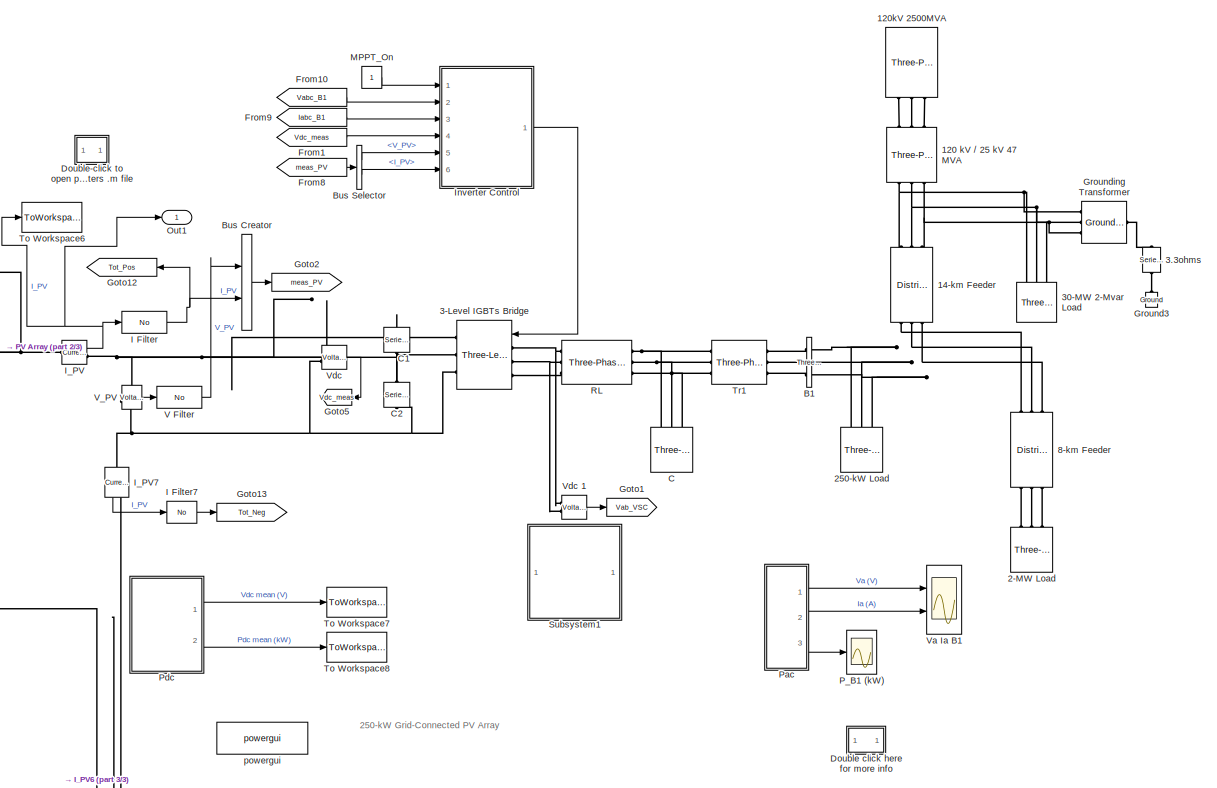
[diagram: root canvas - part 1/3, top right region]
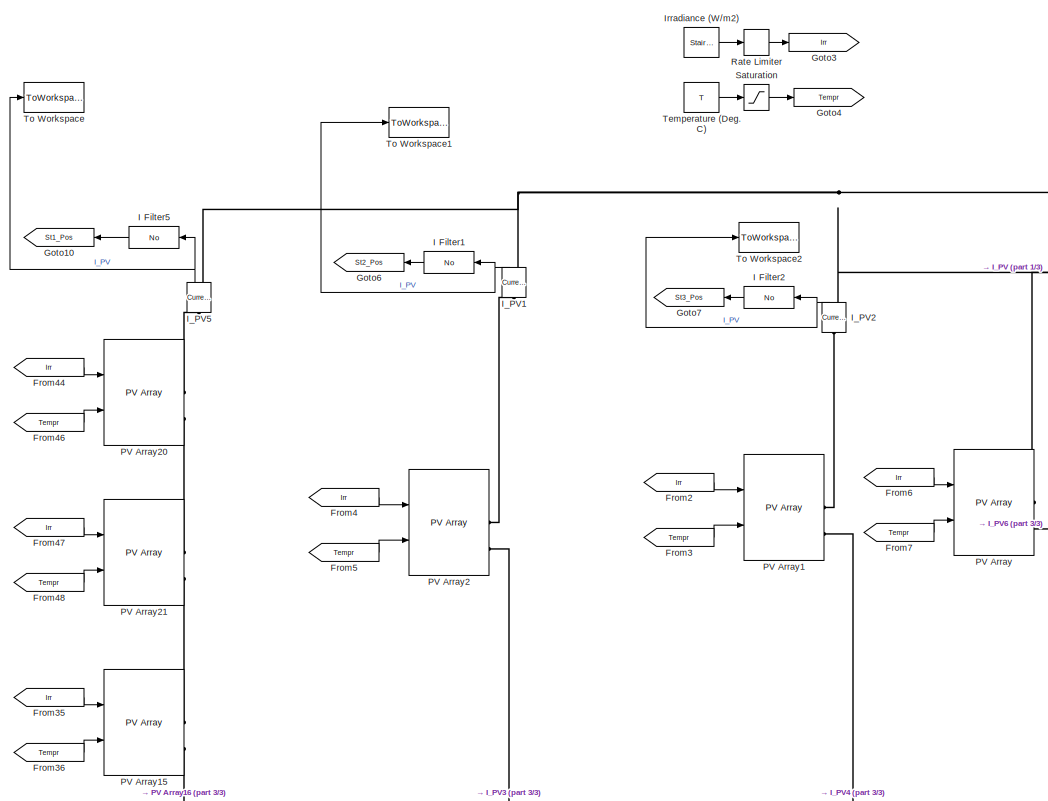
[diagram: root canvas - part 2/3, top left region]
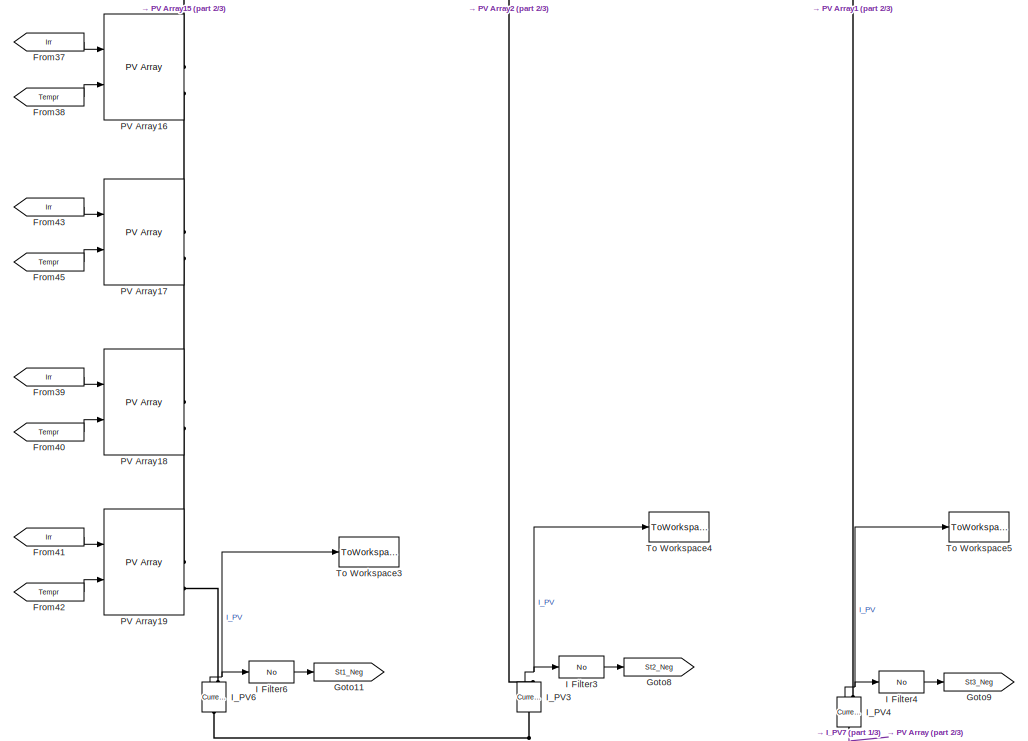
[diagram: root canvas - part 3/3, bottom left region]
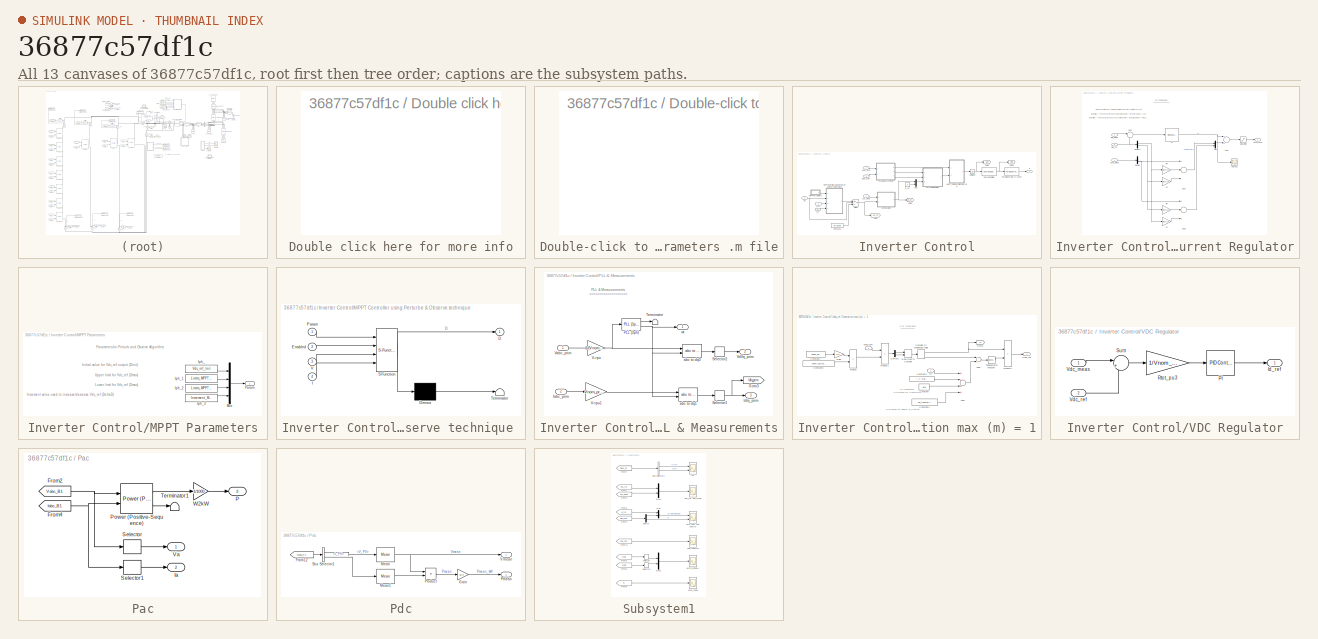
[diagram: thumbnail index - all 13 canvases of the model, root first then tree order]
MODEL slx_36877c57df1c
KIND model
CONFIG AbsTol = auto
CONFIG EnableMultiTasking = off
CONFIG FixedStep = auto
CONFIG InitFcn = power_PVarray_250kW_param;
CONFIG MaxStep = auto
CONFIG MinStep = auto
CONFIG PreLoadFcn = power_PVarray_250kW_param;
CONFIG RelTol = 1e-3
CONFIG SampleTimeConstraint = Unconstrained
CONFIG Solver = FixedStepDiscrete
CONFIG SolverName = FixedStepDiscrete
CONFIG StartTime = 0.0
CONFIG StopTime = tfinal
BLOCK [Reference] 120 kV // 25 kV 47 MVA  REF=powerlib/Elements/Three-Phase
Transformer
(Two Windings)
  AttributesFormatString = \n
  Ports = [0, 0, 0, 0, 0, 3, 3]
  SourceBlock = powerlib/Elements/Three-Phase\nTransformer\n(Two Windings)
  SourceProductBaseCode = PS
  SourceProductName = Simscape Electrical
  SourceType = Three-Phase Transformer (Two Windings)
BLOCK [Reference] 120kV 2500MVA  REF=powerlib/Electrical
Sources/Three-Phase Source
  Ports = [0, 0, 0, 0, 0, 0, 3]
  SourceBlock = powerlib/Electrical\nSources/Three-Phase Source
  SourceProductBaseCode = PS
  SourceProductName = Simscape Electrical
  SourceType = Three-Phase Source
BLOCK [Reference] 14-km Feeder  REF=powerlib/Elements/Distributed Parameters Line
  Ports = [0, 0, 0, 0, 0, 3, 3]
  SourceBlock = powerlib/Elements/Distributed Parameters Line
  SourceProductBaseCode = PS
  SourceProductName = Simscape Electrical
  SourceType = Distributed Parameters Line
BLOCK [Reference] 2-MW Load  REF=powerlib/Elements/Three-Phase
Parallel RLC Load
  AttributesFormatString = \n
  Ports = [0, 0, 0, 0, 0, 3]
  SourceBlock = powerlib/Elements/Three-Phase\nParallel RLC Load
  SourceProductBaseCode = PS
  SourceProductName = Simscape Electrical
  SourceType = Three-Phase Parallel RLC Load
BLOCK [Reference] 250-kW Load  REF=powerlib/Elements/Three-Phase
Parallel RLC Load
  AttributesFormatString = \n
  Ports = [0, 0, 0, 0, 0, 3]
  SourceBlock = powerlib/Elements/Three-Phase\nParallel RLC Load
  SourceProductBaseCode = PS
  SourceProductName = Simscape Electrical
  SourceType = Three-Phase Parallel RLC Load
BLOCK [Reference] 3-Level IGBTs Bridge  REF=powerlib/Power
Electronics/Three-Level Bridge
  AttributesFormatString = \n
  Ports = [1, 0, 0, 0, 0, 3, 3]
  SourceBlock = powerlib/Power\nElectronics/Three-Level Bridge
  SourceProductBaseCode = PS
  SourceProductName = Simscape Electrical
  SourceType = Three-Level Bridge
BLOCK [Reference] 3.3ohms   REF=powerlib/Elements/Series RLC Branch
  Ports = [0, 0, 0, 0, 0, 1, 1]
  SourceBlock = powerlib/Elements/Series RLC Branch
  SourceProductBaseCode = PS
  SourceProductName = Simscape Electrical
  SourceType = Series RLC Branch
BLOCK [Reference] 30-MW 2-Mvar Load  REF=powerlib/Elements/Three-Phase
Parallel RLC Load
  AttributesFormatString = \n
  Ports = [0, 0, 0, 0, 0, 3]
  SourceBlock = powerlib/Elements/Three-Phase\nParallel RLC Load
  SourceProductBaseCode = PS
  SourceProductName = Simscape Electrical
  SourceType = Three-Phase Parallel RLC Load
BLOCK [Reference] 8-km Feeder  REF=powerlib/Elements/Distributed Parameters Line
  Ports = [0, 0, 0, 0, 0, 3, 3]
  SourceBlock = powerlib/Elements/Distributed Parameters Line
  SourceProductBaseCode = PS
  SourceProductName = Simscape Electrical
  SourceType = Distributed Parameters Line
BLOCK [Reference] B1  REF=powerlib/Measurements/Three-Phase
V-I Measurement
  Ports = [0, 0, 0, 0, 0, 3, 3]
  SourceBlock = powerlib/Measurements/Three-Phase\nV-I Measurement
  SourceProductBaseCode = PS
  SourceProductName = Simscape Electrical
  SourceType = Three-Phase VI Measurement
BLOCK [BusCreator] Bus Creator
  DisplayOption = bar
  InheritFromInputs = on
  Inputs = 2
  Ports = [2, 1]
BLOCK [BusSelector] Bus Selector
  OutputAsBus = off
  OutputSignals = V_PV,I_PV
  Ports = [1, 2]
BLOCK [Reference] C  REF=powerlib/Elements/Three-Phase
Series RLC Load
  AttributesFormatString = \n
  Ports = [0, 0, 0, 0, 0, 3]
  SourceBlock = powerlib/Elements/Three-Phase\nSeries RLC Load
  SourceProductBaseCode = PS
  SourceProductName = Simscape Electrical
  SourceType = Three-Phase Series RLC Load
BLOCK [Reference] C1  REF=powerlib/Elements/Series RLC Branch
  AttributesFormatString = \n
  Ports = [0, 0, 0, 0, 0, 1, 1]
  SourceBlock = powerlib/Elements/Series RLC Branch
  SourceProductBaseCode = PS
  SourceProductName = Simscape Electrical
  SourceType = Series RLC Branch
BLOCK [Reference] C2  REF=powerlib/Elements/Series RLC Branch
  AttributesFormatString = \n
  Ports = [0, 0, 0, 0, 0, 1, 1]
  SourceBlock = powerlib/Elements/Series RLC Branch
  SourceProductBaseCode = PS
  SourceProductName = Simscape Electrical
  SourceType = Series RLC Branch
BLOCK [SubSystem] Double click here for more info
  OpenFcn = showdemo(bdroot(gcb))
  Ports = []
  RequestExecContextInheritance = off
BLOCK [SubSystem] Double-click to open parameters .m file
  OpenFcn = open('power_PVarray_250kW_param.m')
  Ports = []
  RequestExecContextInheritance = off
BLOCK [From] From1
  CloseFcn = tagdialog Close
  GotoTag = Vdc_meas
  TagVisibility = global
BLOCK [From] From10
  CloseFcn = tagdialog Close
  GotoTag = Vabc_B1
  TagVisibility = global
BLOCK [From] From2
  CloseFcn = tagdialog Close
  GotoTag = Irr
  TagVisibility = global
BLOCK [From] From3
  CloseFcn = tagdialog Close
  GotoTag = Tempr
  TagVisibility = global
BLOCK [From] From35
  CloseFcn = tagdialog Close
  GotoTag = Irr
  TagVisibility = global
BLOCK [From] From36
  CloseFcn = tagdialog Close
  GotoTag = Tempr
  TagVisibility = global
BLOCK [From] From37
  CloseFcn = tagdialog Close
  GotoTag = Irr
  TagVisibility = global
BLOCK [From] From38
  CloseFcn = tagdialog Close
  GotoTag = Tempr
  TagVisibility = global
BLOCK [From] From39
  CloseFcn = tagdialog Close
  GotoTag = Irr
  TagVisibility = global
BLOCK [From] From4
  CloseFcn = tagdialog Close
  GotoTag = Irr
  TagVisibility = global
BLOCK [From] From40
  CloseFcn = tagdialog Close
  GotoTag = Tempr
  TagVisibility = global
BLOCK [From] From41
  CloseFcn = tagdialog Close
  GotoTag = Irr
  TagVisibility = global
BLOCK [From] From42
  CloseFcn = tagdialog Close
  GotoTag = Tempr
  TagVisibility = global
BLOCK [From] From43
  CloseFcn = tagdialog Close
  GotoTag = Irr
  TagVisibility = global
BLOCK [From] From44
  CloseFcn = tagdialog Close
  GotoTag = Irr
  TagVisibility = global
BLOCK [From] From45
  CloseFcn = tagdialog Close
  GotoTag = Tempr
  TagVisibility = global
BLOCK [From] From46
  CloseFcn = tagdialog Close
  GotoTag = Tempr
  TagVisibility = global
BLOCK [From] From47
  CloseFcn = tagdialog Close
  GotoTag = Irr
  TagVisibility = global
BLOCK [From] From48
  CloseFcn = tagdialog Close
  GotoTag = Tempr
  TagVisibility = global
BLOCK [From] From5
  CloseFcn = tagdialog Close
  GotoTag = Tempr
  TagVisibility = global
BLOCK [From] From6
  CloseFcn = tagdialog Close
  GotoTag = Irr
  TagVisibility = global
BLOCK [From] From7
  CloseFcn = tagdialog Close
  GotoTag = Tempr
  TagVisibility = global
BLOCK [From] From8
  CloseFcn = tagdialog Close
  GotoTag = meas_PV
  TagVisibility = global
BLOCK [From] From9
  CloseFcn = tagdialog Close
  GotoTag = Iabc_B1
  TagVisibility = global
BLOCK [Goto] Goto1
  GotoTag = Vab_VSC
  TagVisibility = global
BLOCK [Goto] Goto10
  GotoTag = St1_Pos
  TagVisibility = global
BLOCK [Goto] Goto11
  GotoTag = St1_Neg
  TagVisibility = global
BLOCK [Goto] Goto12
  GotoTag = Tot_Pos
  TagVisibility = global
BLOCK [Goto] Goto13
  GotoTag = Tot_Neg
  TagVisibility = global
BLOCK [Goto] Goto2
  GotoTag = meas_PV
  TagVisibility = global
BLOCK [Goto] Goto3
  GotoTag = Irr
  IconDisplay = Signal name
  TagVisibility = global
BLOCK [Goto] Goto4
  GotoTag = Tempr
  IconDisplay = Signal name
  TagVisibility = global
BLOCK [Goto] Goto5
  GotoTag = Vdc_meas
  TagVisibility = global
BLOCK [Goto] Goto6
  GotoTag = St2_Pos
  TagVisibility = global
BLOCK [Goto] Goto7
  GotoTag = St3_Pos
  TagVisibility = global
BLOCK [Goto] Goto8
  GotoTag = St2_Neg
  TagVisibility = global
BLOCK [Goto] Goto9
  GotoTag = St3_Neg
  TagVisibility = global
BLOCK [Reference] Ground3  REF=powerlib/Elements/Ground
  AttributesFormatString = \n
  Ports = [0, 0, 0, 0, 0, 1]
  SourceBlock = powerlib/Elements/Ground
  SourceProductBaseCode = PS
  SourceProductName = Simscape Electrical
  SourceType = Ground
BLOCK [Reference] Grounding Transformer   REF=powerlib/Elements/Grounding
Transformer 
  Ports = [0, 0, 0, 0, 0, 3, 1]
  SourceBlock = powerlib/Elements/Grounding\nTransformer
  SourceProductBaseCode = PS
  SourceProductName = Simscape Electrical
  SourceType = Grounding Transformer
BLOCK [Reference] I Filter  REF=spsPVarrayModel/No
  Ports = [1, 1]
  SourceBlock = spsPVarrayModel/No
  SourceProductBaseCode = PS
  SourceProductName = Simscape Electrical
  SourceType = SubSystem
BLOCK [Reference] I Filter1  REF=spsPVarrayModel/No
  Ports = [1, 1]
  SourceBlock = spsPVarrayModel/No
  SourceProductBaseCode = PS
  SourceProductName = Simscape Electrical
  SourceType = SubSystem
BLOCK [Reference] I Filter2  REF=spsPVarrayModel/No
  Ports = [1, 1]
  SourceBlock = spsPVarrayModel/No
  SourceProductBaseCode = PS
  SourceProductName = Simscape Electrical
  SourceType = SubSystem
BLOCK [Reference] I Filter3  REF=spsPVarrayModel/No
  Ports = [1, 1]
  SourceBlock = spsPVarrayModel/No
  SourceProductBaseCode = PS
  SourceProductName = Simscape Electrical
  SourceType = SubSystem
BLOCK [Reference] I Filter4  REF=spsPVarrayModel/No
  Ports = [1, 1]
  SourceBlock = spsPVarrayModel/No
  SourceProductBaseCode = PS
  SourceProductName = Simscape Electrical
  SourceType = SubSystem
BLOCK [Reference] I Filter5  REF=spsPVarrayModel/No
  Ports = [1, 1]
  SourceBlock = spsPVarrayModel/No
  SourceProductBaseCode = PS
  SourceProductName = Simscape Electrical
  SourceType = SubSystem
BLOCK [Reference] I Filter6  REF=spsPVarrayModel/No
  Ports = [1, 1]
  SourceBlock = spsPVarrayModel/No
  SourceProductBaseCode = PS
  SourceProductName = Simscape Electrical
  SourceType = SubSystem
BLOCK [Reference] I Filter7  REF=spsPVarrayModel/No
  Ports = [1, 1]
  SourceBlock = spsPVarrayModel/No
  SourceProductBaseCode = PS
  SourceProductName = Simscape Electrical
  SourceType = SubSystem
BLOCK [Reference] I_PV  REF=powerlib/Measurements/Current Measurement
  Ports = [0, 1, 0, 0, 0, 1, 1]
  SourceBlock = powerlib/Measurements/Current Measurement
  SourceProductBaseCode = PS
  SourceProductName = Simscape Electrical
  SourceType = Current Measurement
BLOCK [Reference] I_PV1  REF=powerlib/Measurements/Current Measurement
  Ports = [0, 1, 0, 0, 0, 1, 1]
  SourceBlock = powerlib/Measurements/Current Measurement
  SourceProductBaseCode = PS
  SourceProductName = Simscape Electrical
  SourceType = Current Measurement
BLOCK [Reference] I_PV2  REF=powerlib/Measurements/Current Measurement
  Ports = [0, 1, 0, 0, 0, 1, 1]
  SourceBlock = powerlib/Measurements/Current Measurement
  SourceProductBaseCode = PS
  SourceProductName = Simscape Electrical
  SourceType = Current Measurement
BLOCK [Reference] I_PV3  REF=powerlib/Measurements/Current Measurement
  Ports = [0, 1, 0, 0, 0, 1, 1]
  SourceBlock = powerlib/Measurements/Current Measurement
  SourceProductBaseCode = PS
  SourceProductName = Simscape Electrical
  SourceType = Current Measurement
BLOCK [Reference] I_PV4  REF=powerlib/Measurements/Current Measurement
  Ports = [0, 1, 0, 0, 0, 1, 1]
  SourceBlock = powerlib/Measurements/Current Measurement
  SourceProductBaseCode = PS
  SourceProductName = Simscape Electrical
  SourceType = Current Measurement
BLOCK [Reference] I_PV5  REF=powerlib/Measurements/Current Measurement
  Ports = [0, 1, 0, 0, 0, 1, 1]
  SourceBlock = powerlib/Measurements/Current Measurement
  SourceProductBaseCode = PS
  SourceProductName = Simscape Electrical
  SourceType = Current Measurement
BLOCK [Reference] I_PV6  REF=powerlib/Measurements/Current Measurement
  Ports = [0, 1, 0, 0, 0, 1, 1]
  SourceBlock = powerlib/Measurements/Current Measurement
  SourceProductBaseCode = PS
  SourceProductName = Simscape Electrical
  SourceType = Current Measurement
BLOCK [Reference] I_PV7  REF=powerlib/Measurements/Current Measurement
  Ports = [0, 1, 0, 0, 0, 1, 1]
  SourceBlock = powerlib/Measurements/Current Measurement
  SourceProductBaseCode = PS
  SourceProductName = Simscape Electrical
  SourceType = Current Measurement
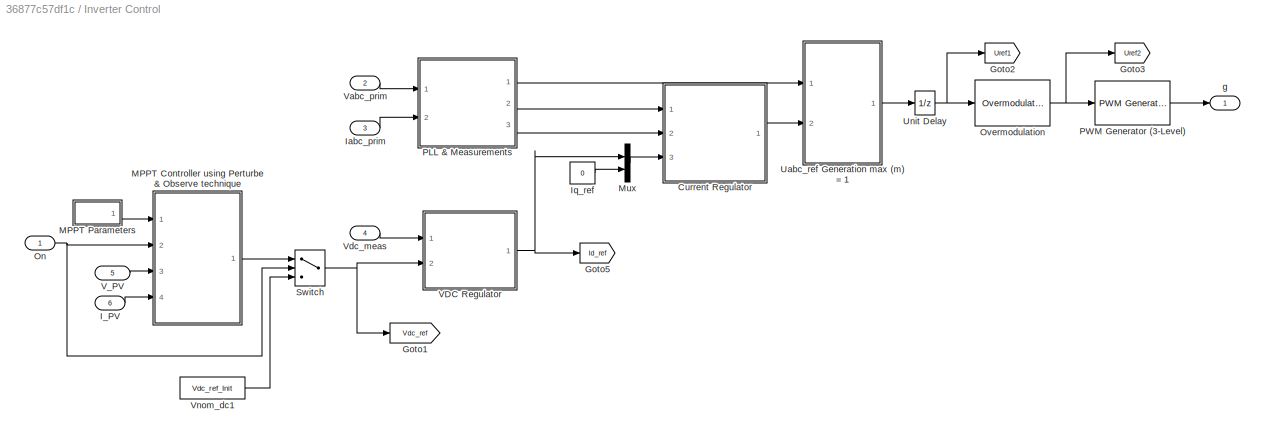
BLOCK [SubSystem] Inverter Control
  Ports = [6, 1]
  RequestExecContextInheritance = off
BLOCK [SubSystem] Inverter Control/Current Regulator
  Ports = [3, 1]
  RequestExecContextInheritance = off
BLOCK [Sum] Inverter Control/Current Regulator/Add1
  InputSameDT = off
  Inputs = ++-
  OutDataTypeStr = Inherit: Inherit via internal rule
  Ports = [3, 1]
  SaturateOnIntegerOverflow = off
BLOCK [Sum] Inverter Control/Current Regulator/Add2
  InputSameDT = off
  OutDataTypeStr = Inherit: Inherit via internal rule
  Ports = [2, 1]
  SaturateOnIntegerOverflow = off
BLOCK [Sum] Inverter Control/Current Regulator/Add3
  InputSameDT = off
  Inputs = +++
  OutDataTypeStr = Inherit: Inherit via internal rule
  Ports = [3, 1]
  SaturateOnIntegerOverflow = off
BLOCK [Demux] Inverter Control/Current Regulator/Demux
  DisplayOption = bar
  Outputs = 2
  Ports = [1, 2]
BLOCK [Demux] Inverter Control/Current Regulator/Demux1
  DisplayOption = bar
  Outputs = 2
  Ports = [1, 2]
BLOCK [Inport] Inverter Control/Current Regulator/IdIq_meas
  IconDisplay = Port number
  Port = 2
  PortDimensions = 2
BLOCK [Inport] Inverter Control/Current Regulator/IdIq_ref
  IconDisplay = Port number
  Port = 3
  PortDimensions = 2
BLOCK [Gain] Inverter Control/Current Regulator/Lff
  Gain = RLff(2)
BLOCK [Gain] Inverter Control/Current Regulator/Lff  
  Gain = RLff(2)
BLOCK [Mux] Inverter Control/Current Regulator/Mux
  DisplayOption = bar
  Inputs = 2
  Ports = [2, 1]
BLOCK [Reference] Inverter Control/Current Regulator/PI  REF=simulink/Continuous/PID Controller
  Ports = [1, 1]
  SourceBlock = simulink/Continuous/PID Controller
  SourceProductBaseCode = SL
  SourceProductName = Simulink
  SourceType = PID 1dof
BLOCK [Scope] Inverter Control/Current Regulator/PI_Ireg1
  Floating = off
  NumInputPorts = 1
  Ports = [1]
  ScopeSpecificationString = C++SS(StrPVP('Location','[1318, 429, 1642, 668]'),MxPVP('AxesTitles',54,'struct(''axes1'',''%<SignalLabel>'')'),MxPVP('ScopeGraphics',57,'struct(''FigureColor'',''[0.5 0.5 0.5]'',''AxesColor'',''[0 0 0]'',''AxesTickColor'',''[1 1 1]'',''LineColors'',''[1 1 0;1 0 1;0 1 1;1 0 0;0 1 0;0 0 1]'',''LineStyles'',''-|-|-|-|-|-'',''LineWidths'',''[0.5 0.5 0.5 0.5 0.5 0.5]'',''MarkerStyles'',''none|none|non...<+191ch>
BLOCK [Gain] Inverter Control/Current Regulator/Rff
  Gain = RLff(1)
BLOCK [Gain] Inverter Control/Current Regulator/Rff 
  Gain = RLff(1)
BLOCK [Saturate] Inverter Control/Current Regulator/Saturation
  InputPortMap = u0
  LowerLimit = LimitL_Ireg
  Ports = [1, 1]
  UpperLimit = LimitU_Ireg
BLOCK [Sum] Inverter Control/Current Regulator/Sum
  IconShape = round
  InputSameDT = off
  Inputs = |-+
  OutDataTypeStr = Inherit: Inherit via internal rule
  Ports = [2, 1]
  SaturateOnIntegerOverflow = off
BLOCK [Outport] Inverter Control/Current Regulator/VdVq_conv
  IconDisplay = Port number
  VectorParamsAs1DForOutWhenUnconnected = off
BLOCK [Inport] Inverter Control/Current Regulator/VdVq_meas
  IconDisplay = Port number
  PortDimensions = 2
BLOCK [Goto] Inverter Control/Goto1
  GotoTag = Vdc_ref
  TagVisibility = global
BLOCK [Goto] Inverter Control/Goto2
  GotoTag = Uref1
  TagVisibility = global
BLOCK [Goto] Inverter Control/Goto3
  GotoTag = Uref2
  TagVisibility = global
BLOCK [Goto] Inverter Control/Goto5
  GotoTag = Id_ref
  TagVisibility = global
BLOCK [Inport] Inverter Control/I_PV
  IconDisplay = Port number
  Port = 6
  PortDimensions = 1
BLOCK [Inport] Inverter Control/Iabc_prim
  IconDisplay = Port number
  Port = 3
  PortDimensions = 3
BLOCK [Constant] Inverter Control/Iq_ref
  Value = 0
BLOCK [SubSystem] Inverter Control/MPPT Controller using Perturbe & Observe technique 
  ErrorFcn = Stateflow.Translate.translate
  PermitHierarchicalResolution = ExplicitOnly
  Ports = [4, 1]
  RequestExecContextInheritance = off
  SFBlockType = MATLAB Function
  TreatAsAtomicUnit = on
BLOCK [Demux] Inverter Control/MPPT Controller using Perturbe & Observe technique / Demux 
  Outputs = 1
  Ports = [1, 1]
BLOCK [S-Function] Inverter Control/MPPT Controller using Perturbe & Observe technique / SFunction 
  EnableBusSupport = on
  FunctionName = sf_sfun
  PortCounts = [4 2]
  Ports = [4, 2]
  SFcnIsStateOwnerBlock = off
  SFunctionDeploymentMode = off
  Tag = Stateflow S-Function 1
BLOCK [Terminator] Inverter Control/MPPT Controller using Perturbe & Observe technique / Terminator 
BLOCK [Outport] Inverter Control/MPPT Controller using Perturbe & Observe technique /D
  IconDisplay = Port number
  VectorParamsAs1DForOutWhenUnconnected = off
BLOCK [Inport] Inverter Control/MPPT Controller using Perturbe & Observe technique /Enabled
  IconDisplay = Port number
  Port = 2
BLOCK [Inport] Inverter Control/MPPT Controller using Perturbe & Observe technique /I
  IconDisplay = Port number
  Port = 4
BLOCK [Inport] Inverter Control/MPPT Controller using Perturbe & Observe technique /Param
  IconDisplay = Port number
BLOCK [Inport] Inverter Control/MPPT Controller using Perturbe & Observe technique /V
  IconDisplay = Port number
  Port = 3
BLOCK [SubSystem] Inverter Control/MPPT Parameters
  Ports = [0, 1]
  RequestExecContextInheritance = off
BLOCK [Constant] Inverter Control/MPPT Parameters/Iph_
  Value = Vdc_ref_Init
BLOCK [Constant] Inverter Control/MPPT Parameters/Iph_1
  Value = Limits_MPPT(1)
BLOCK [Constant] Inverter Control/MPPT Parameters/Iph_2
  Value = Limits_MPPT(2)
BLOCK [Constant] Inverter Control/MPPT Parameters/Iph_3
  Value = Increment_MPPT
BLOCK [Mux] Inverter Control/MPPT Parameters/Mux
  DisplayOption = bar
  Ports = [4, 1]
BLOCK [Outport] Inverter Control/MPPT Parameters/Param
  IconDisplay = Port number
  VectorParamsAs1DForOutWhenUnconnected = off
BLOCK [Mux] Inverter Control/Mux
  DisplayOption = bar
  Inputs = 2
  Ports = [2, 1]
BLOCK [Inport] Inverter Control/On
  IconDisplay = Port number
  PortDimensions = 1
BLOCK [Reference] Inverter Control/Overmodulation  REF=powerlib_meascontrol/Pulse & Signal
Generators/Overmodulation
  Ports = [1, 1]
  SourceBlock = powerlib_meascontrol/Pulse & Signal\nGenerators/Overmodulation
  SourceProductBaseCode = PS
  SourceProductName = Simscape Electrical
  SourceType = Overmodulation
BLOCK [SubSystem] Inverter Control/PLL & Measurements
  Ports = [2, 3]
  RequestExecContextInheritance = off
BLOCK [Goto] Inverter Control/PLL & Measurements/Goto3
  GotoTag = IdIq_prim
  TagVisibility = global
BLOCK [Inport] Inverter Control/PLL & Measurements/Iabc_prim
  IconDisplay = Port number
  Port = 2
BLOCK [Outport] Inverter Control/PLL & Measurements/IdIq_prim
  IconDisplay = Port number
  Port = 3
  VectorParamsAs1DForOutWhenUnconnected = off
BLOCK [Reference] Inverter Control/PLL & Measurements/PLL (3ph)  REF=powerlib_meascontrol/PLL/PLL
(3ph)
  Ports = [1, 2]
  SourceBlock = powerlib_meascontrol/PLL/PLL\n(3ph)
  SourceProductBaseCode = PS
  SourceProductName = Simscape Electrical
  SourceType = PLL (3ph)
BLOCK [Selector] Inverter Control/PLL & Measurements/Selector1
  IndexOptions = Index vector (dialog)
  Indices = [1 2]
  InputPortWidth = 3
  OutputSizes = 1
  Ports = [1, 1]
BLOCK [Selector] Inverter Control/PLL & Measurements/Selector2
  IndexOptions = Index vector (dialog)
  Indices = [1 2]
  InputPortWidth = 3
  OutputSizes = 1
  Ports = [1, 1]
BLOCK [Terminator] Inverter Control/PLL & Measurements/Terminator
BLOCK [Gain] Inverter Control/PLL & Measurements/V->pu
  Gain = 1/(Vnom_prim*sqrt(2)/sqrt(3))
BLOCK [Gain] Inverter Control/PLL & Measurements/V->pu1
  Gain = Vnom_prim*sqrt(3)/Pnom/sqrt(2)
BLOCK [Inport] Inverter Control/PLL & Measurements/Vabc_prim
  IconDisplay = Port number
BLOCK [Outport] Inverter Control/PLL & Measurements/VdVq_prim
  IconDisplay = Port number
  Port = 2
  VectorParamsAs1DForOutWhenUnconnected = off
BLOCK [Reference] Inverter Control/PLL & Measurements/abc to dq0  REF=powerlib_meascontrol/Transformations/abc to dq0
  Ports = [2, 1]
  SourceBlock = powerlib_meascontrol/Transformations/abc to dq0
  SourceProductBaseCode = PS
  SourceProductName = Simscape Electrical
  SourceType = abc to dq0 Transformation
BLOCK [Reference] Inverter Control/PLL & Measurements/abc to dq1  REF=powerlib_meascontrol/Transformations/abc to dq0
  Ports = [2, 1]
  SourceBlock = powerlib_meascontrol/Transformations/abc to dq0
  SourceProductBaseCode = PS
  SourceProductName = Simscape Electrical
  SourceType = abc to dq0 Transformation
BLOCK [Outport] Inverter Control/PLL & Measurements/wt
  IconDisplay = Port number
  VectorParamsAs1DForOutWhenUnconnected = off
BLOCK [Reference] Inverter Control/PWM Generator (3-Level)  REF=powerlib_meascontrol/Pulse & Signal
Generators/PWM Generator
(3-Level)
  Ports = [1, 1]
  SourceBlock = powerlib_meascontrol/Pulse & Signal\nGenerators/PWM Generator\n(3-Level)
  SourceProductBaseCode = PS
  SourceProductName = Simscape Electrical
  SourceType = PWM Generator (3-Level)
BLOCK [Switch] Inverter Control/Switch
  Criteria = u2 ~= 0
  InputSameDT = off
  SaturateOnIntegerOverflow = off
BLOCK [SubSystem] Inverter Control/Uabc_ref Generation max (m) = 1
  Ports = [2, 1]
  RequestExecContextInheritance = off
BLOCK [Sum] Inverter Control/Uabc_ref Generation max (m) = 1/Add1
  InputSameDT = off
  Inputs = ++++
  OutDataTypeStr = Inherit: Inherit via internal rule
  Ports = [4, 1]
  SaturateOnIntegerOverflow = off
BLOCK [Sum] Inverter Control/Uabc_ref Generation max (m) = 1/Add2
  InputSameDT = off
  OutDataTypeStr = Inherit: Inherit via internal rule
  Ports = [2, 1]
  SaturateOnIntegerOverflow = off
BLOCK [ComplexToMagnitudeAngle] Inverter Control/Uabc_ref Generation max (m) = 1/Complex to Magnitude-Angle
  Ports = [1, 2]
BLOCK [Constant] Inverter Control/Uabc_ref Generation max (m) = 1/Constant
  Value = -pi/6
BLOCK [Constant] Inverter Control/Uabc_ref Generation max (m) = 1/Constant1
  Value = Vnom_dc
BLOCK [Constant] Inverter Control/Uabc_ref Generation max (m) = 1/Constant2
  Value = [ 0  -2*pi/3  2*pi/3  ]
BLOCK [Constant] Inverter Control/Uabc_ref Generation max (m) = 1/Constant3
  Value = Vnom_sec*sqrt(2)/sqrt(3)
BLOCK [Constant] Inverter Control/Uabc_ref Generation max (m) = 1/Constant4
  Value = Ts_Control*Fnom*(2*pi)
BLOCK [Demux] Inverter Control/Uabc_ref Generation max (m) = 1/Demux1
  DisplayOption = bar
  Outputs = 2
  Ports = [1, 2]
BLOCK [Gain] Inverter Control/Uabc_ref Generation max (m) = 1/Gain1
  Gain = 1/2
  OutDataTypeStr = Inherit: Inherit via internal rule
  ParamDataTypeStr = Inherit: Inherit via internal rule
  SaturateOnIntegerOverflow = off
BLOCK [Goto] Inverter Control/Uabc_ref Generation max (m) = 1/Goto1
  GotoTag = m
  TagVisibility = global
BLOCK [Product] Inverter Control/Uabc_ref Generation max (m) = 1/Product
  InputSameDT = off
  Inputs = */
  OutDataTypeStr = Inherit: Inherit via internal rule
  Ports = [2, 1]
  SaturateOnIntegerOverflow = off
BLOCK [Product] Inverter Control/Uabc_ref Generation max (m) = 1/Product1
  InputSameDT = off
  Inputs = */
  OutDataTypeStr = Inherit: Inherit via internal rule
  Ports = [2, 1]
  SaturateOnIntegerOverflow = off
BLOCK [Product] Inverter Control/Uabc_ref Generation max (m) = 1/Product2
  InputSameDT = off
  Inputs = **
  OutDataTypeStr = Inherit: Inherit via internal rule
  Ports = [2, 1]
  SaturateOnIntegerOverflow = off
BLOCK [RealImagToComplex] Inverter Control/Uabc_ref Generation max (m) = 1/Real-Imag to Complex
  Ports = [2, 1]
BLOCK [Trigonometry] Inverter Control/Uabc_ref Generation max (m) = 1/Trigonometric Function
  Ports = [1, 1]
BLOCK [Outport] Inverter Control/Uabc_ref Generation max (m) = 1/Uabc_ref
  IconDisplay = Port number
  VectorParamsAs1DForOutWhenUnconnected = off
BLOCK [Inport] Inverter Control/Uabc_ref Generation max (m) = 1/VdVq_conv
  IconDisplay = Port number
  Port = 2
BLOCK [Inport] Inverter Control/Uabc_ref Generation max (m) = 1/wt
  IconDisplay = Port number
BLOCK [UnitDelay] Inverter Control/Unit Delay
  HasFrameUpgradeWarning = on
  SampleTime = Ts_Control
BLOCK [SubSystem] Inverter Control/VDC Regulator
  Ports = [2, 1]
  RequestExecContextInheritance = off
BLOCK [Outport] Inverter Control/VDC Regulator/Id_ref
  IconDisplay = Port number
  InitialOutput = 0
  VectorParamsAs1DForOutWhenUnconnected = off
BLOCK [Reference] Inverter Control/VDC Regulator/PI  REF=simulink/Continuous/PID Controller
  Ports = [1, 1]
  SourceBlock = simulink/Continuous/PID Controller
  SourceProductBaseCode = SL
  SourceProductName = Simulink
  SourceType = PID 1dof
BLOCK [Gain] Inverter Control/VDC Regulator/Rtot_pu3
  Gain = 1/Vnom_dc
BLOCK [Sum] Inverter Control/VDC Regulator/Sum
  IconShape = round
  InputSameDT = off
  Inputs = |+-
  OutDataTypeStr = Inherit: Inherit via internal rule
  Ports = [2, 1]
  SaturateOnIntegerOverflow = off
BLOCK [Inport] Inverter Control/VDC Regulator/Vdc_meas
  IconDisplay = Port number
  PortDimensions = 1
BLOCK [Inport] Inverter Control/VDC Regulator/Vdc_ref
  IconDisplay = Port number
  Port = 2
  PortDimensions = 1
BLOCK [Inport] Inverter Control/V_PV
  IconDisplay = Port number
  Port = 5
  PortDimensions = 1
BLOCK [Inport] Inverter Control/Vabc_prim
  IconDisplay = Port number
  Port = 2
  PortDimensions = 3
BLOCK [Inport] Inverter Control/Vdc_meas
  IconDisplay = Port number
  Port = 4
  PortDimensions = 1
BLOCK [Constant] Inverter Control/Vnom_dc1
  Value = Vdc_ref_Init
BLOCK [Outport] Inverter Control/g
  IconDisplay = Port number
  VectorParamsAs1DForOutWhenUnconnected = off
BLOCK [Reference] Irradiance (W//m2)  REF=powerlib_meascontrol/Pulse & Signal
Generators/Stair
Generator
  Ports = [0, 1]
  SourceBlock = powerlib_meascontrol/Pulse & Signal\nGenerators/Stair\nGenerator
  SourceProductBaseCode = PS
  SourceProductName = Simscape Electrical
  SourceType = Stair Generator
BLOCK [Constant] MPPT_On
BLOCK [Outport] Out1
  IconDisplay = Port number
  SignalName = totalc
  VectorParamsAs1DForOutWhenUnconnected = off
BLOCK [Reference] PV Array  REF=re_lib/Solar/PV Array
  AttributesFormatString = %<ModuleName>\n%<Nser>-module string\n%<Npar> parallel strings
  Ports = [2, 1, 0, 0, 0, 0, 2]
  SourceBlock = re_lib/Solar/PV Array
  SourceProductBaseCode = PS
  SourceProductName = Simscape Electrical
  SourceType = PV array
BLOCK [Reference] PV Array1  REF=re_lib/Solar/PV Array
  AttributesFormatString = %<ModuleName>\n%<Nser>-module string\n%<Npar> parallel strings
  Ports = [2, 1, 0, 0, 0, 0, 2]
  SourceBlock = re_lib/Solar/PV Array
  SourceProductBaseCode = PS
  SourceProductName = Simscape Electrical
  SourceType = PV array
BLOCK [Reference] PV Array15  REF=re_lib/Solar/PV Array
  AttributesFormatString = %<ModuleName>\n%<Nser>-module string\n%<Npar> parallel strings
  Ports = [2, 1, 0, 0, 0, 0, 2]
  SourceBlock = re_lib/Solar/PV Array
  SourceProductBaseCode = PS
  SourceProductName = Simscape Electrical
  SourceType = PV array
BLOCK [Reference] PV Array16  REF=re_lib/Solar/PV Array
  AttributesFormatString = %<ModuleName>\n%<Nser>-module string\n%<Npar> parallel strings
  Ports = [2, 1, 0, 0, 0, 0, 2]
  SourceBlock = re_lib/Solar/PV Array
  SourceProductBaseCode = PS
  SourceProductName = Simscape Electrical
  SourceType = PV array
BLOCK [Reference] PV Array17  REF=re_lib/Solar/PV Array
  AttributesFormatString = %<ModuleName>\n%<Nser>-module string\n%<Npar> parallel strings
  Ports = [2, 1, 0, 0, 0, 0, 2]
  SourceBlock = re_lib/Solar/PV Array
  SourceProductBaseCode = PS
  SourceProductName = Simscape Electrical
  SourceType = PV array
BLOCK [Reference] PV Array18  REF=re_lib/Solar/PV Array
  AttributesFormatString = %<ModuleName>\n%<Nser>-module string\n%<Npar> parallel strings
  Ports = [2, 1, 0, 0, 0, 0, 2]
  SourceBlock = re_lib/Solar/PV Array
  SourceProductBaseCode = PS
  SourceProductName = Simscape Electrical
  SourceType = PV array
BLOCK [Reference] PV Array19  REF=re_lib/Solar/PV Array
  AttributesFormatString = %<ModuleName>\n%<Nser>-module string\n%<Npar> parallel strings
  Ports = [2, 1, 0, 0, 0, 0, 2]
  SourceBlock = re_lib/Solar/PV Array
  SourceProductBaseCode = PS
  SourceProductName = Simscape Electrical
  SourceType = PV array
BLOCK [Reference] PV Array2  REF=re_lib/Solar/PV Array
  AttributesFormatString = %<ModuleName>\n%<Nser>-module string\n%<Npar> parallel strings
  Ports = [2, 1, 0, 0, 0, 0, 2]
  SourceBlock = re_lib/Solar/PV Array
  SourceProductBaseCode = PS
  SourceProductName = Simscape Electrical
  SourceType = PV array
BLOCK [Reference] PV Array20  REF=re_lib/Solar/PV Array
  AttributesFormatString = %<ModuleName>\n%<Nser>-module string\n%<Npar> parallel strings
  Ports = [2, 1, 0, 0, 0, 0, 2]
  SourceBlock = re_lib/Solar/PV Array
  SourceProductBaseCode = PS
  SourceProductName = Simscape Electrical
  SourceType = PV array
BLOCK [Reference] PV Array21  REF=re_lib/Solar/PV Array
  AttributesFormatString = %<ModuleName>\n%<Nser>-module string\n%<Npar> parallel strings
  Ports = [2, 1, 0, 0, 0, 0, 2]
  SourceBlock = re_lib/Solar/PV Array
  SourceProductBaseCode = PS
  SourceProductName = Simscape Electrical
  SourceType = PV array
BLOCK [Scope] P_B1 (kW)
  Floating = off
  NumInputPorts = 1
  Ports = [1]
  ScopeSpecificationString = Simulink.scopes.TimeScopeBlockCfg('CurrentConfiguration', extmgr.ConfigurationSet(extmgr.Configuration('Core','General UI',true),extmgr.Configuration('Core','Source UI',true),extmgr.Configuration('Sources','WiredSimulink',true,'DataLoggingDecimation','10','DataLoggingDecimateData',true,'DataLoggingSaveFormat','Array'),extmgr.Configuration('Visuals','Time Domain',true,'SerializedDisplays',{struct('...<+1663ch>
BLOCK [SubSystem] Pac
  Ports = [0, 3]
  RequestExecContextInheritance = off
BLOCK [From] Pac/From2
  CloseFcn = tagdialog Close
  GotoTag = Vabc_B1
  TagVisibility = global
BLOCK [From] Pac/From4
  CloseFcn = tagdialog Close
  GotoTag = Iabc_B1
  TagVisibility = global
BLOCK [Outport] Pac/Ia
  IconDisplay = Port number
  Port = 2
  VectorParamsAs1DForOutWhenUnconnected = off
BLOCK [Outport] Pac/P
  IconDisplay = Port number
  Port = 3
  VectorParamsAs1DForOutWhenUnconnected = off
BLOCK [Reference] Pac/Power (Positive-Sequence)  REF=powerlib_meascontrol/Measurements/Power
(Positive-Sequence)
  Ports = [2, 2]
  SourceBlock = powerlib_meascontrol/Measurements/Power\n(Positive-Sequence)
  SourceProductBaseCode = PS
  SourceProductName = Simscape Electrical
  SourceType = Power (Positive-Sequence)
BLOCK [Selector] Pac/Selector
  IndexOptions = Index vector (dialog)
  Indices = [1]
  InputPortWidth = 3
  OutputSizes = 1
  Ports = [1, 1]
BLOCK [Selector] Pac/Selector1
  IndexOptions = Index vector (dialog)
  Indices = [1]
  InputPortWidth = 3
  OutputSizes = 1
  Ports = [1, 1]
BLOCK [Terminator] Pac/Terminator1
BLOCK [Outport] Pac/Va
  IconDisplay = Port number
  VectorParamsAs1DForOutWhenUnconnected = off
BLOCK [Gain] Pac/W2kW
  Gain = 1/1000
  OutDataTypeStr = Inherit: Inherit via internal rule
  ParamDataTypeStr = Inherit: Inherit via internal rule
  SaturateOnIntegerOverflow = off
BLOCK [SubSystem] Pdc
  Ports = [0, 2]
  RequestExecContextInheritance = off
BLOCK [BusSelector] Pdc/Bus Selector1
  OutputAsBus = off
  OutputSignals = V_PV,I_PV
  Ports = [1, 2]
BLOCK [From] Pdc/From12
  CloseFcn = tagdialog Close
  GotoTag = meas_PV
  TagVisibility = global
BLOCK [Gain] Pdc/Gain
  Gain = 1e-3
  OutDataTypeStr = Inherit: Inherit via internal rule
  ParamDataTypeStr = Inherit: Inherit via internal rule
  SaturateOnIntegerOverflow = off
BLOCK [Reference] Pdc/Mean  REF=powerlib_meascontrol/Measurements/Mean
  Ports = [1, 1]
  SourceBlock = powerlib_meascontrol/Measurements/Mean
  SourceProductBaseCode = PS
  SourceProductName = Simscape Electrical
  SourceType = Mean
BLOCK [Reference] Pdc/Mean1  REF=powerlib_meascontrol/Measurements/Mean
  Ports = [1, 1]
  SourceBlock = powerlib_meascontrol/Measurements/Mean
  SourceProductBaseCode = PS
  SourceProductName = Simscape Electrical
  SourceType = Mean
BLOCK [Outport] Pdc/Pmean
  IconDisplay = Port number
  Port = 2
  VectorParamsAs1DForOutWhenUnconnected = off
BLOCK [Product] Pdc/Product
  InputSameDT = off
  OutDataTypeStr = Inherit: Inherit via internal rule
  Ports = [2, 1]
  RndMeth = Floor
  SaturateOnIntegerOverflow = off
BLOCK [Outport] Pdc/V mean
  IconDisplay = Port number
  VectorParamsAs1DForOutWhenUnconnected = off
BLOCK [Reference] RL  REF=powerlib/Elements/Three-Phase
Series RLC Branch
  AttributesFormatString = \n
  Ports = [0, 0, 0, 0, 0, 3, 3]
  SourceBlock = powerlib/Elements/Three-Phase\nSeries RLC Branch
  SourceProductBaseCode = PS
  SourceProductName = Simscape Electrical
  SourceType = Three-Phase Series RLC Branch
BLOCK [RateLimiter] Rate Limiter
  FallingSlewLimit = -6000
  InitialCondition = 1000
  RisingSlewLimit = 6000
  SampleTimeMode = inherited
BLOCK [Saturate] Saturation
  InputPortMap = u0
  LowerLimit = 5
  Ports = [1, 1]
  UpperLimit = 55
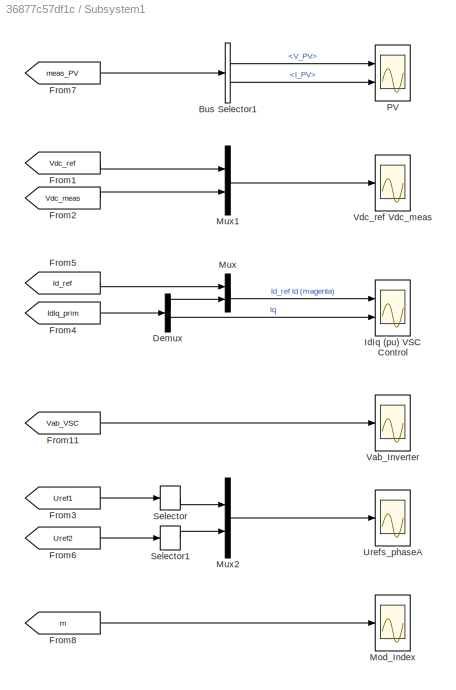
BLOCK [SubSystem] Subsystem1
  Ports = []
  RequestExecContextInheritance = off
BLOCK [BusSelector] Subsystem1/Bus Selector1
  OutputAsBus = off
  OutputSignals = V_PV,I_PV
  Ports = [1, 2]
BLOCK [Demux] Subsystem1/Demux
  DisplayOption = bar
  Outputs = 2
  Ports = [1, 2]
BLOCK [From] Subsystem1/From1
  GotoTag = Vdc_ref
  TagVisibility = global
BLOCK [From] Subsystem1/From11
  CloseFcn = tagdialog Close
  GotoTag = Vab_VSC
  TagVisibility = global
BLOCK [From] Subsystem1/From2
  GotoTag = Vdc_meas
  TagVisibility = global
BLOCK [From] Subsystem1/From3
  CloseFcn = tagdialog Close
  GotoTag = Uref1
  TagVisibility = global
BLOCK [From] Subsystem1/From4
  CloseFcn = tagdialog Close
  GotoTag = IdIq_prim
  TagVisibility = global
BLOCK [From] Subsystem1/From5
  CloseFcn = tagdialog Close
  GotoTag = Id_ref
  TagVisibility = global
BLOCK [From] Subsystem1/From6
  CloseFcn = tagdialog Close
  GotoTag = Uref2
  TagVisibility = global
BLOCK [From] Subsystem1/From7
  CloseFcn = tagdialog Close
  GotoTag = meas_PV
  TagVisibility = global
BLOCK [From] Subsystem1/From8
  CloseFcn = tagdialog Close
  GotoTag = m
  TagVisibility = global
BLOCK [Scope] Subsystem1/IdIq (pu) VSC Control
  Floating = off
  NumInputPorts = 2
  Ports = [2]
  ScopeSpecificationString = C++SS(StrPVP('Location','[866, 223, 1315, 784]'),StrPVP('ZoomMode','yonly'),MxPVP('AxesTitles',54,'struct(''axes1'',''%<SignalLabel>'',''axes2'',''%<SignalLabel>'')'),MxPVP('ScopeGraphics',57,'struct(''FigureColor'',''[0.5 0.5 0.5]'',''AxesColor'',''[0 0 0]'',''AxesTickColor'',''[1 1 1]'',''LineColors'',''[1 1 0;1 0 1;0 1 1;1 0 0;0 1 0;0 0 1]'',''LineStyles'',''-|-|-|-|-|-'',''LineWidths'',''[0.5 ...<+255ch>
BLOCK [Scope] Subsystem1/Mod_Index
  Floating = off
  NumInputPorts = 1
  Ports = [1]
  ScopeSpecificationString = C++SS(StrPVP('Location','[869, 223, 1314, 781]'),MxPVP('AxesTitles',54,'struct(''axes1'',''%<SignalLabel>'')'),MxPVP('ScopeGraphics',57,'struct(''FigureColor'',''[0.5 0.5 0.5]'',''AxesColor'',''[0 0 0]'',''AxesTickColor'',''[1 1 1]'',''LineColors'',''[1 1 0;1 0 1;0 1 1;1 0 0;0 1 0;0 0 1]'',''LineStyles'',''-|-|-|-|-|-'',''LineWidths'',''[0.5 0.5 0.5 0.5 0.5 0.5]'',''MarkerStyles'',''none|none|none...<+255ch>
BLOCK [Mux] Subsystem1/Mux
  DisplayOption = bar
  Inputs = 2
  Ports = [2, 1]
BLOCK [Mux] Subsystem1/Mux1
  DisplayOption = bar
  Inputs = 2
  Ports = [2, 1]
BLOCK [Mux] Subsystem1/Mux2
  DisplayOption = bar
  Inputs = 2
  Ports = [2, 1]
BLOCK [Scope] Subsystem1/PV
  Floating = off
  NumInputPorts = 2
  Ports = [2]
  ScopeSpecificationString = Simulink.scopes.TimeScopeBlockCfg('CurrentConfiguration', extmgr.ConfigurationSet(extmgr.Configuration('Core','General UI',true),extmgr.Configuration('Core','Source UI',true),extmgr.Configuration('Sources','WiredSimulink',true,'DataLoggingVariableName','ScopeData2','DataLoggingDecimation','10','DataLoggingDecimateData',true,'DataLoggingSaveFormat','Array'),extmgr.Configuration('Visuals','Time Doma...<+3055ch>
BLOCK [Selector] Subsystem1/Selector
  IndexOptions = Index vector (dialog)
  Indices = [1]
  InputPortWidth = 3
  OutputSizes = 1
  Ports = [1, 1]
BLOCK [Selector] Subsystem1/Selector1
  IndexOptions = Index vector (dialog)
  Indices = [1]
  InputPortWidth = 3
  OutputSizes = 1
  Ports = [1, 1]
BLOCK [Scope] Subsystem1/Urefs_phaseA
  Floating = off
  NumInputPorts = 1
  Ports = [1]
  ScopeSpecificationString = C++SS(StrPVP('Location','[866, 224, 1317, 783]'),StrPVP('ZoomMode','xonly'),MxPVP('AxesTitles',54,'struct(''axes1'',''%<SignalLabel>'')'),MxPVP('ScopeGraphics',57,'struct(''FigureColor'',''[0.5 0.5 0.5]'',''AxesColor'',''[0 0 0]'',''AxesTickColor'',''[1 1 1]'',''LineColors'',''[1 1 0;1 0 1;0 1 1;1 0 0;0 1 0;0 0 1]'',''LineStyles'',''-|-|-|-|-|-'',''LineWidths'',''[0.5 0.5 0.5 0.5 0.5 0.5]'',''Mark...<+257ch>
BLOCK [Scope] Subsystem1/Vab_Inverter
  Floating = off
  NumInputPorts = 1
  Ports = [1]
  ScopeSpecificationString = C++SS(StrPVP('Location','[867, 224, 1316, 780]'),MxPVP('AxesTitles',54,'struct(''axes1'',''%<SignalLabel>'')'),MxPVP('ScopeGraphics',57,'struct(''FigureColor'',''[0.5 0.5 0.5]'',''AxesColor'',''[0 0 0]'',''AxesTickColor'',''[1 1 1]'',''LineColors'',''[1 1 0;1 0 1;0 1 1;1 0 0;0 1 0;0 0 1]'',''LineStyles'',''-|-|-|-|-|-'',''LineWidths'',''[0.5 0.5 0.5 0.5 0.5 0.5]'',''MarkerStyles'',''none|none|none...<+288ch>
BLOCK [Scope] Subsystem1/Vdc_ref Vdc_meas
  Floating = off
  NumInputPorts = 1
  Ports = [1]
  ScopeSpecificationString = C++SS(StrPVP('Location','[867, 223, 1313, 784]'),StrPVP('ZoomMode','yonly'),MxPVP('AxesTitles',54,'struct(''axes1'',''%<SignalLabel>'')'),MxPVP('ScopeGraphics',57,'struct(''FigureColor'',''[0.5 0.5 0.5]'',''AxesColor'',''[0 0 0]'',''AxesTickColor'',''[1 1 1]'',''LineColors'',''[1 1 0;1 0 1;0 1 1;1 0 0;0 1 0;0 0 1]'',''LineStyles'',''-|-|-|-|-|-'',''LineWidths'',''[0.5 0.5 0.5 0.5 0.5 0.5]'',''Mark...<+273ch>
BLOCK [Constant] Temperature (Deg. C)
  Value = T
BLOCK [ToWorkspace] To Workspace
  FixptAsFi = on
  MaxDataPoints = inf
  Ports = [1]
  SampleTime = -1
  Save2DSignal = 2-D array (concatenate along first dimension)
  VariableName = I1
BLOCK [ToWorkspace] To Workspace1
  FixptAsFi = on
  MaxDataPoints = inf
  Ports = [1]
  SampleTime = -1
  Save2DSignal = 2-D array (concatenate along first dimension)
  VariableName = I3
BLOCK [ToWorkspace] To Workspace2
  FixptAsFi = on
  MaxDataPoints = inf
  Ports = [1]
  SampleTime = -1
  Save2DSignal = 2-D array (concatenate along first dimension)
  VariableName = I5
BLOCK [ToWorkspace] To Workspace3
  FixptAsFi = on
  MaxDataPoints = inf
  Ports = [1]
  SampleTime = -1
  Save2DSignal = 2-D array (concatenate along first dimension)
  VariableName = I2
BLOCK [ToWorkspace] To Workspace4
  FixptAsFi = on
  MaxDataPoints = inf
  Ports = [1]
  SampleTime = -1
  Save2DSignal = 2-D array (concatenate along first dimension)
  VariableName = I4
BLOCK [ToWorkspace] To Workspace5
  FixptAsFi = on
  MaxDataPoints = inf
  Ports = [1]
  SampleTime = -1
  Save2DSignal = 2-D array (concatenate along first dimension)
  VariableName = I6
BLOCK [ToWorkspace] To Workspace6
  FixptAsFi = on
  MaxDataPoints = inf
  Ports = [1]
  SampleTime = -1
  Save2DSignal = 2-D array (concatenate along first dimension)
  VariableName = Itotal
BLOCK [ToWorkspace] To Workspace7
  FixptAsFi = on
  MaxDataPoints = inf
  Ports = [1]
  SampleTime = -1
  Save2DSignal = 2-D array (concatenate along first dimension)
  VariableName = Vdcmean
BLOCK [ToWorkspace] To Workspace8
  FixptAsFi = on
  MaxDataPoints = inf
  Ports = [1]
  SampleTime = -1
  Save2DSignal = 2-D array (concatenate along first dimension)
  VariableName = Pdcmean
BLOCK [Reference] Tr1  REF=powerlib/Elements/Three-Phase
Transformer
(Two Windings)
  AttributesFormatString = \n
  Ports = [0, 0, 0, 0, 0, 3, 3]
  SourceBlock = powerlib/Elements/Three-Phase\nTransformer\n(Two Windings)
  SourceProductBaseCode = PS
  SourceProductName = Simscape Electrical
  SourceType = Three-Phase Transformer (Two Windings)
BLOCK [Reference] V Filter  REF=spsPVarrayModel/No
  Ports = [1, 1]
  SourceBlock = spsPVarrayModel/No
  SourceProductBaseCode = PS
  SourceProductName = Simscape Electrical
  SourceType = SubSystem
BLOCK [Reference] V_PV  REF=powerlib/Measurements/Voltage Measurement
  Ports = [0, 1, 0, 0, 0, 2]
  SourceBlock = powerlib/Measurements/Voltage Measurement
  SourceProductBaseCode = PS
  SourceProductName = Simscape Electrical
  SourceType = Voltage Measurement
BLOCK [Scope] Va Ia B1
  Floating = off
  NumInputPorts = 2
  Ports = [2]
  ScopeSpecificationString = Simulink.scopes.TimeScopeBlockCfg('CurrentConfiguration', extmgr.ConfigurationSet(extmgr.Configuration('Core','General UI',true),extmgr.Configuration('Core','Source UI',true),extmgr.Configuration('Sources','WiredSimulink',true,'DataLogging',true,'DataLoggingVariableName','VaIa_Grid','DataLoggingSaveFormat','StructureWithTime','DataLoggingDecimation','1','DataLoggingDecimateData',true),extmgr.Confi...<+2369ch>
BLOCK [Reference] Vdc   REF=powerlib/Measurements/Voltage Measurement
  AttributesFormatString = \n
  Ports = [0, 1, 0, 0, 0, 2]
  SourceBlock = powerlib/Measurements/Voltage Measurement
  SourceProductBaseCode = PS
  SourceProductName = Simscape Electrical
  SourceType = Voltage Measurement
  Tag = PoWeRsYsTeMmEaSuReMeNt
BLOCK [Reference] Vdc 1  REF=powerlib/Measurements/Voltage Measurement
  AttributesFormatString = \n
  Ports = [0, 1, 0, 0, 0, 2]
  SourceBlock = powerlib/Measurements/Voltage Measurement
  SourceProductBaseCode = PS
  SourceProductName = Simscape Electrical
  SourceType = Voltage Measurement
  Tag = PoWeRsYsTeMmEaSuReMeNt
BLOCK [Reference] powergui  REF=powerlib/powergui
  Ports = []
  Priority = 1
  SourceBlock = powerlib/powergui
  SourceProductBaseCode = PS
  SourceProductName = Simscape Electrical
  SourceType = PSB option menu block
ANNOTATION (root): 250-kW Grid-Connected PV Array
ANNOTATION Inverter Control/Current Regulator: Current Regulator ================
ANNOTATION Inverter Control/Current Regulator: Id positive --> The converter generates active power ("Inverter mode") = Active Power P positive
ANNOTATION Inverter Control/Current Regulator: Iq positive --> The converter absorbs reactive power ("Inductive mode") = Reactive Power Q negative
ANNOTATION Inverter Control/Current Regulator: Sign Convention: Current going out of the converter = positive current
ANNOTATION Inverter Control/MPPT Parameters: Increment value used to increase/decrease Vdc_ref (DeltaD)
ANNOTATION Inverter Control/MPPT Parameters: Initial value for Vdc_ref output (Dinit)
ANNOTATION Inverter Control/MPPT Parameters: Lower limit for Vdc_ref (Dmax)
ANNOTATION Inverter Control/MPPT Parameters: Parameters for Perturb and Observe Algorithm:
ANNOTATION Inverter Control/MPPT Parameters: Upper limit for Vdc_ref (Dmax)
ANNOTATION Inverter Control/PLL & Measurements: PLL & Measurements ===================
ANNOTATION Inverter Control/Uabc_ref Generation max (m) = 1: (Correction for delai of Ts_Control)
ANNOTATION Inverter Control/Uabc_ref Generation max (m) = 1: (Correction for transformer D1 connection)
ANNOTATION Inverter Control/Uabc_ref Generation max (m) = 1: Uref Generation ==============
LINE Bus Creator:1 -> Goto2:1
LINE Bus Selector:1 -> Inverter Control:5
LINE Bus Selector:2 -> Inverter Control:6
LINE From10:1 -> Inverter Control:2
LINE From1:1 -> Inverter Control:4
LINE From2:1 -> PV Array1:1
LINE From35:1 -> PV Array15:1
LINE From36:1 -> PV Array15:2
LINE From37:1 -> PV Array16:1
LINE From38:1 -> PV Array16:2
LINE From39:1 -> PV Array18:1
LINE From3:1 -> PV Array1:2
LINE From40:1 -> PV Array18:2
LINE From41:1 -> PV Array19:1
LINE From42:1 -> PV Array19:2
LINE From43:1 -> PV Array17:1
LINE From44:1 -> PV Array20:1
LINE From45:1 -> PV Array17:2
LINE From46:1 -> PV Array20:2
LINE From47:1 -> PV Array21:1
LINE From48:1 -> PV Array21:2
LINE From4:1 -> PV Array2:1
LINE From5:1 -> PV Array2:2
LINE From6:1 -> PV Array:1
LINE From7:1 -> PV Array:2
LINE From8:1 -> Bus Selector:1
LINE From9:1 -> Inverter Control:3
LINE I Filter1:1 -> Goto6:1
LINE I Filter2:1 -> Goto7:1
LINE I Filter3:1 -> Goto8:1
LINE I Filter4:1 -> Goto9:1
LINE I Filter5:1 -> Goto10:1
LINE I Filter6:1 -> Goto11:1
LINE I Filter7:1 -> Goto13:1
NET I Filter:1 -> Bus Creator:2, Goto12:1
NET I_PV1:1 -> I Filter1:1, To Workspace1:1
NET I_PV2:1 -> I Filter2:1, To Workspace2:1
NET I_PV3:1 -> I Filter3:1, To Workspace4:1
NET I_PV4:1 -> I Filter4:1, To Workspace5:1
NET I_PV5:1 -> I Filter5:1, To Workspace:1
NET I_PV6:1 -> I Filter6:1, To Workspace3:1
LINE I_PV7:1 -> I Filter7:1
NET I_PV:1 -> I Filter:1, Out1:1, To Workspace6:1
LINE Inverter Control/Current Regulator/Add1:1 -> Inverter Control/Current Regulator/Mux:1
LINE Inverter Control/Current Regulator/Add2:1 -> Inverter Control/Current Regulator/Saturation:1
LINE Inverter Control/Current Regulator/Add3:1 -> Inverter Control/Current Regulator/Mux:2
NET Inverter Control/Current Regulator/Demux1:1 -> Inverter Control/Current Regulator/Lff:1, Inverter Control/Current Regulator/Rff :1
NET Inverter Control/Current Regulator/Demux1:2 -> Inverter Control/Current Regulator/Lff  :1, Inverter Control/Current Regulator/Rff:1
LINE Inverter Control/Current Regulator/Demux:1 -> Inverter Control/Current Regulator/Add1:1
LINE Inverter Control/Current Regulator/Demux:2 -> Inverter Control/Current Regulator/Add3:1
LINE Inverter Control/Current Regulator/IdIq_meas:1 -> Inverter Control/Current Regulator/Sum:1
NET Inverter Control/Current Regulator/IdIq_ref:1 -> Inverter Control/Current Regulator/Demux1:1, Inverter Control/Current Regulator/Sum:2
LINE Inverter Control/Current Regulator/Lff  :1 -> Inverter Control/Current Regulator/Add1:3
LINE Inverter Control/Current Regulator/Lff:1 -> Inverter Control/Current Regulator/Add3:3
LINE Inverter Control/Current Regulator/Mux:1 -> Inverter Control/Current Regulator/Add2:2
NET Inverter Control/Current Regulator/PI:1 -> Inverter Control/Current Regulator/Add2:1, Inverter Control/Current Regulator/PI_Ireg1:1
LINE Inverter Control/Current Regulator/Rff :1 -> Inverter Control/Current Regulator/Add1:2
LINE Inverter Control/Current Regulator/Rff:1 -> Inverter Control/Current Regulator/Add3:2
LINE Inverter Control/Current Regulator/Saturation:1 -> Inverter Control/Current Regulator/VdVq_conv:1
LINE Inverter Control/Current Regulator/Sum:1 -> Inverter Control/Current Regulator/PI:1
LINE Inverter Control/Current Regulator/VdVq_meas:1 -> Inverter Control/Current Regulator/Demux:1
LINE Inverter Control/Current Regulator:1 -> Inverter Control/Uabc_ref Generation max (m) = 1:2
LINE Inverter Control/I_PV:1 -> Inverter Control/MPPT Controller using Perturbe & Observe technique :4
LINE Inverter Control/Iabc_prim:1 -> Inverter Control/PLL & Measurements:2
LINE Inverter Control/Iq_ref:1 -> Inverter Control/Mux:2
LINE Inverter Control/MPPT Controller using Perturbe & Observe technique :1 -> Inverter Control/Switch:1
LINE Inverter Control/MPPT Parameters/Iph_1:1 -> Inverter Control/MPPT Parameters/Mux:2
LINE Inverter Control/MPPT Parameters/Iph_2:1 -> Inverter Control/MPPT Parameters/Mux:3
LINE Inverter Control/MPPT Parameters/Iph_3:1 -> Inverter Control/MPPT Parameters/Mux:4
LINE Inverter Control/MPPT Parameters/Iph_:1 -> Inverter Control/MPPT Parameters/Mux:1
LINE Inverter Control/MPPT Parameters/Mux:1 -> Inverter Control/MPPT Parameters/Param:1
LINE Inverter Control/MPPT Parameters:1 -> Inverter Control/MPPT Controller using Perturbe & Observe technique :1
LINE Inverter Control/Mux:1 -> Inverter Control/Current Regulator:3
NET Inverter Control/On:1 -> Inverter Control/MPPT Controller using Perturbe & Observe technique :2, Inverter Control/Switch:2
NET Inverter Control/Overmodulation:1 -> Inverter Control/Goto3:1, Inverter Control/PWM Generator (3-Level):1
LINE Inverter Control/PLL & Measurements/Iabc_prim:1 -> Inverter Control/PLL & Measurements/V->pu1:1
LINE Inverter Control/PLL & Measurements/PLL (3ph):1 -> Inverter Control/PLL & Measurements/Terminator:1
NET Inverter Control/PLL & Measurements/PLL (3ph):2 -> Inverter Control/PLL & Measurements/abc to dq0:2, Inverter Control/PLL & Measurements/abc to dq1:2, Inverter Control/PLL & Measurements/wt:1
NET Inverter Control/PLL & Measurements/Selector1:1 -> Inverter Control/PLL & Measurements/Goto3:1, Inverter Control/PLL & Measurements/IdIq_prim:1
LINE Inverter Control/PLL & Measurements/Selector2:1 -> Inverter Control/PLL & Measurements/VdVq_prim:1
LINE Inverter Control/PLL & Measurements/V->pu1:1 -> Inverter Control/PLL & Measurements/abc to dq1:1
NET Inverter Control/PLL & Measurements/V->pu:1 -> Inverter Control/PLL & Measurements/PLL (3ph):1, Inverter Control/PLL & Measurements/abc to dq0:1
LINE Inverter Control/PLL & Measurements/Vabc_prim:1 -> Inverter Control/PLL & Measurements/V->pu:1
LINE Inverter Control/PLL & Measurements/abc to dq0:1 -> Inverter Control/PLL & Measurements/Selector2:1
LINE Inverter Control/PLL & Measurements/abc to dq1:1 -> Inverter Control/PLL & Measurements/Selector1:1
LINE Inverter Control/PLL & Measurements:1 -> Inverter Control/Uabc_ref Generation max (m) = 1:1
LINE Inverter Control/PLL & Measurements:2 -> Inverter Control/Current Regulator:1
LINE Inverter Control/PLL & Measurements:3 -> Inverter Control/Current Regulator:2
LINE Inverter Control/PWM Generator (3-Level):1 -> Inverter Control/g:1
NET Inverter Control/Switch:1 -> Inverter Control/Goto1:1, Inverter Control/VDC Regulator:2
LINE Inverter Control/Uabc_ref Generation max (m) = 1/Add1:1 -> Inverter Control/Uabc_ref Generation max (m) = 1/Add2:2
LINE Inverter Control/Uabc_ref Generation max (m) = 1/Add2:1 -> Inverter Control/Uabc_ref Generation max (m) = 1/Trigonometric Function:1
NET Inverter Control/Uabc_ref Generation max (m) = 1/Complex to Magnitude-Angle:1 -> Inverter Control/Uabc_ref Generation max (m) = 1/Goto1:1, Inverter Control/Uabc_ref Generation max (m) = 1/Product2:1
LINE Inverter Control/Uabc_ref Generation max (m) = 1/Complex to Magnitude-Angle:2 -> Inverter Control/Uabc_ref Generation max (m) = 1/Add2:1
LINE Inverter Control/Uabc_ref Generation max (m) = 1/Constant1:1 -> Inverter Control/Uabc_ref Generation max (m) = 1/Gain1:1
LINE Inverter Control/Uabc_ref Generation max (m) = 1/Constant2:1 -> Inverter Control/Uabc_ref Generation max (m) = 1/Add1:2
LINE Inverter Control/Uabc_ref Generation max (m) = 1/Constant3:1 -> Inverter Control/Uabc_ref Generation max (m) = 1/Product:2
LINE Inverter Control/Uabc_ref Generation max (m) = 1/Constant4:1 -> Inverter Control/Uabc_ref Generation max (m) = 1/Add1:4
LINE Inverter Control/Uabc_ref Generation max (m) = 1/Constant:1 -> Inverter Control/Uabc_ref Generation max (m) = 1/Add1:3
LINE Inverter Control/Uabc_ref Generation max (m) = 1/Demux1:1 -> Inverter Control/Uabc_ref Generation max (m) = 1/Real-Imag to Complex:1
LINE Inverter Control/Uabc_ref Generation max (m) = 1/Demux1:2 -> Inverter Control/Uabc_ref Generation max (m) = 1/Real-Imag to Complex:2
LINE Inverter Control/Uabc_ref Generation max (m) = 1/Gain1:1 -> Inverter Control/Uabc_ref Generation max (m) = 1/Product:1
LINE Inverter Control/Uabc_ref Generation max (m) = 1/Product1:1 -> Inverter Control/Uabc_ref Generation max (m) = 1/Demux1:1
LINE Inverter Control/Uabc_ref Generation max (m) = 1/Product2:1 -> Inverter Control/Uabc_ref Generation max (m) = 1/Uabc_ref:1
LINE Inverter Control/Uabc_ref Generation max (m) = 1/Product:1 -> Inverter Control/Uabc_ref Generation max (m) = 1/Product1:2
LINE Inverter Control/Uabc_ref Generation max (m) = 1/Real-Imag to Complex:1 -> Inverter Control/Uabc_ref Generation max (m) = 1/Complex to Magnitude-Angle:1
LINE Inverter Control/Uabc_ref Generation max (m) = 1/Trigonometric Function:1 -> Inverter Control/Uabc_ref Generation max (m) = 1/Product2:2
LINE Inverter Control/Uabc_ref Generation max (m) = 1/VdVq_conv:1 -> Inverter Control/Uabc_ref Generation max (m) = 1/Product1:1
LINE Inverter Control/Uabc_ref Generation max (m) = 1/wt:1 -> Inverter Control/Uabc_ref Generation max (m) = 1/Add1:1
LINE Inverter Control/Uabc_ref Generation max (m) = 1:1 -> Inverter Control/Unit Delay:1
NET Inverter Control/Unit Delay:1 -> Inverter Control/Goto2:1, Inverter Control/Overmodulation:1
LINE Inverter Control/VDC Regulator/PI:1 -> Inverter Control/VDC Regulator/Id_ref:1
LINE Inverter Control/VDC Regulator/Rtot_pu3:1 -> Inverter Control/VDC Regulator/PI:1
LINE Inverter Control/VDC Regulator/Sum:1 -> Inverter Control/VDC Regulator/Rtot_pu3:1
LINE Inverter Control/VDC Regulator/Vdc_meas:1 -> Inverter Control/VDC Regulator/Sum:1
LINE Inverter Control/VDC Regulator/Vdc_ref:1 -> Inverter Control/VDC Regulator/Sum:2
NET Inverter Control/VDC Regulator:1 -> Inverter Control/Goto5:1, Inverter Control/Mux:1
LINE Inverter Control/V_PV:1 -> Inverter Control/MPPT Controller using Perturbe & Observe technique :3
LINE Inverter Control/Vabc_prim:1 -> Inverter Control/PLL & Measurements:1
LINE Inverter Control/Vdc_meas:1 -> Inverter Control/VDC Regulator:1
LINE Inverter Control/Vnom_dc1:1 -> Inverter Control/Switch:3
LINE Inverter Control:1 -> 3-Level IGBTs Bridge:1
LINE Irradiance (W//m2):1 -> Rate Limiter:1
LINE MPPT_On:1 -> Inverter Control:1
NET Pac/From2:1 -> Pac/Power (Positive-Sequence):1, Pac/Selector:1
NET Pac/From4:1 -> Pac/Power (Positive-Sequence):2, Pac/Selector1:1
LINE Pac/Power (Positive-Sequence):1 -> Pac/W2kW:1
LINE Pac/Power (Positive-Sequence):2 -> Pac/Terminator1:1
LINE Pac/Selector1:1 -> Pac/Ia:1
LINE Pac/Selector:1 -> Pac/Va:1
LINE Pac/W2kW:1 -> Pac/P:1
LINE Pac:1 -> Va Ia B1:1
LINE Pac:2 -> Va Ia B1:2
LINE Pac:3 -> P_B1 (kW):1
LINE Pdc/Bus Selector1:1 -> Pdc/Mean:1
LINE Pdc/Bus Selector1:2 -> Pdc/Mean1:1
LINE Pdc/From12:1 -> Pdc/Bus Selector1:1
LINE Pdc/Gain:1 -> Pdc/Pmean:1
LINE Pdc/Mean1:1 -> Pdc/Product:2
NET Pdc/Mean:1 -> Pdc/Product:1, Pdc/V mean:1
LINE Pdc/Product:1 -> Pdc/Gain:1
LINE Pdc:1 -> To Workspace7:1
LINE Pdc:2 -> To Workspace8:1
LINE Rate Limiter:1 -> Goto3:1
LINE Saturation:1 -> Goto4:1
LINE Subsystem1/Bus Selector1:1 -> Subsystem1/PV:1
LINE Subsystem1/Bus Selector1:2 -> Subsystem1/PV:2
LINE Subsystem1/Demux:1 -> Subsystem1/Mux:2
LINE Subsystem1/Demux:2 -> Subsystem1/IdIq (pu) VSC Control:2
LINE Subsystem1/From11:1 -> Subsystem1/Vab_Inverter:1
LINE Subsystem1/From1:1 -> Subsystem1/Mux1:1
LINE Subsystem1/From2:1 -> Subsystem1/Mux1:2
LINE Subsystem1/From3:1 -> Subsystem1/Selector:1
LINE Subsystem1/From4:1 -> Subsystem1/Demux:1
LINE Subsystem1/From5:1 -> Subsystem1/Mux:1
LINE Subsystem1/From6:1 -> Subsystem1/Selector1:1
LINE Subsystem1/From7:1 -> Subsystem1/Bus Selector1:1
LINE Subsystem1/From8:1 -> Subsystem1/Mod_Index:1
LINE Subsystem1/Mux1:1 -> Subsystem1/Vdc_ref Vdc_meas:1
LINE Subsystem1/Mux2:1 -> Subsystem1/Urefs_phaseA:1
LINE Subsystem1/Mux:1 -> Subsystem1/IdIq (pu) VSC Control:1
LINE Subsystem1/Selector1:1 -> Subsystem1/Mux2:2
LINE Subsystem1/Selector:1 -> Subsystem1/Mux2:1
LINE Temperature (Deg. C):1 -> Saturation:1
LINE V Filter:1 -> Bus Creator:1
LINE V_PV:1 -> V Filter:1
LINE Vdc 1:1 -> Goto1:1
LINE Vdc :1 -> Goto5:1
PLINE 120 kV // 25 kV 47 MVA:LConn1 -- 120kV 2500MVA:RConn1
PLINE 120 kV // 25 kV 47 MVA:LConn2 -- 120kV 2500MVA:RConn2
PLINE 120 kV // 25 kV 47 MVA:LConn3 -- 120kV 2500MVA:RConn3
PNET net1: 120 kV // 25 kV 47 MVA:RConn1 -- 14-km Feeder:LConn1 -- 30-MW 2-Mvar Load:LConn1 -- Grounding Transformer :LConn1
PNET net2: 120 kV // 25 kV 47 MVA:RConn2 -- 14-km Feeder:LConn2 -- 30-MW 2-Mvar Load:LConn2 -- Grounding Transformer :LConn2
PNET net3: 120 kV // 25 kV 47 MVA:RConn3 -- 14-km Feeder:LConn3 -- 30-MW 2-Mvar Load:LConn3 -- Grounding Transformer :LConn3
PNET net4: 14-km Feeder:RConn1 -- 250-kW Load:LConn1 -- 8-km Feeder:LConn1 -- B1:RConn1
PNET net5: 14-km Feeder:RConn2 -- 250-kW Load:LConn2 -- 8-km Feeder:LConn2 -- B1:RConn2
PNET net6: 14-km Feeder:RConn3 -- 250-kW Load:LConn3 -- 8-km Feeder:LConn3 -- B1:RConn3
PLINE 2-MW Load:LConn1 -- 8-km Feeder:RConn1
PLINE 2-MW Load:LConn2 -- 8-km Feeder:RConn2
PLINE 2-MW Load:LConn3 -- 8-km Feeder:RConn3
PNET net7: 3-Level IGBTs Bridge:LConn1 -- RL:LConn1 -- Vdc 1:LConn1
PNET net8: 3-Level IGBTs Bridge:LConn2 -- RL:LConn2 -- Vdc 1:LConn2
PLINE 3-Level IGBTs Bridge:LConn3 -- RL:LConn3
PNET net9: 3-Level IGBTs Bridge:RConn1 -- C1:LConn1 -- I_PV:RConn1 -- V_PV:LConn1 -- Vdc :LConn1
PNET net10: 3-Level IGBTs Bridge:RConn2 -- C1:RConn1 -- C2:LConn1
PNET net11: 3-Level IGBTs Bridge:RConn3 -- C2:RConn1 -- I_PV7:LConn1 -- V_PV:LConn2 -- Vdc :LConn2
PLINE 3.3ohms :LConn1 -- Grounding Transformer :RConn1
PLINE 3.3ohms :RConn1 -- Ground3:LConn1
PLINE B1:LConn1 -- Tr1:LConn1
PLINE B1:LConn2 -- Tr1:LConn2
PLINE B1:LConn3 -- Tr1:LConn3
PNET net12: C:LConn1 -- RL:RConn1 -- Tr1:RConn1
PNET net13: C:LConn2 -- RL:RConn2 -- Tr1:RConn2
PNET net14: C:LConn3 -- RL:RConn3 -- Tr1:RConn3
PLINE I_PV1:LConn1 -- PV Array2:RConn1
PNET net15: I_PV1:RConn1 -- I_PV2:RConn1 -- I_PV5:RConn1 -- I_PV:LConn1 -- PV Array:RConn1
PLINE I_PV2:LConn1 -- PV Array1:RConn1
PNET net16: I_PV3:LConn1 -- I_PV4:LConn1 -- I_PV6:LConn1 -- I_PV7:RConn1 -- PV Array:RConn2
PLINE I_PV3:RConn1 -- PV Array2:RConn2
PLINE I_PV4:RConn1 -- PV Array1:RConn2
PLINE I_PV5:LConn1 -- PV Array20:RConn1
PLINE I_PV6:RConn1 -- PV Array19:RConn2
PLINE PV Array15:RConn1 -- PV Array21:RConn2
PLINE PV Array15:RConn2 -- PV Array16:RConn1
PLINE PV Array16:RConn2 -- PV Array17:RConn1
PLINE PV Array17:RConn2 -- PV Array18:RConn1
PLINE PV Array18:RConn2 -- PV Array19:RConn1
PLINE PV Array20:RConn2 -- PV Array21:RConn1
note: NET lines group one-source signal fan-out (src -> all destinations, sorted); 1:1 wires keep LINE; PNET lines group multi-terminal physical nets as a canonical sorted terminal list (undirected conserving connections); 2-terminal nets keep the pairwise PLINE form
CHART Inverter Control/MPPT Controller
using Perturbe 
& Observe technique
  states=1 transitions=1
  STATE_LABEL 'eML_blk_kernel()'
  STATE_LABEL 'SCRIPT:\nfunction D  = PandO(Param, Enabled, V, I)\n\n% MPPT controller based on the Perturb & Observe algorithm.\n\n% D output = Reference for DC link voltage (Vdc_ref) \n%\n% Enabled input = 1 to enable the MPPT controller\n% V input = PV array terminal voltage (V)\n% I input = PV array current (A)\n%\n% Param input:\nDinit = Param(1);  %Initial value for Vdc_ref\nDmax = Param(2);   %Maximum value for Vdc_re...<+626ch>'
